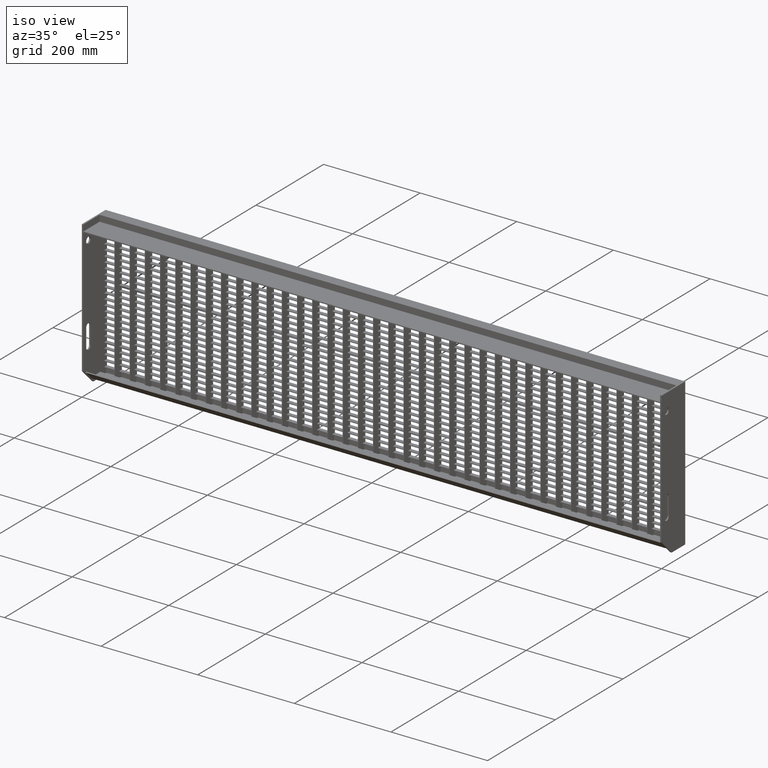
[diagram: clean part render]
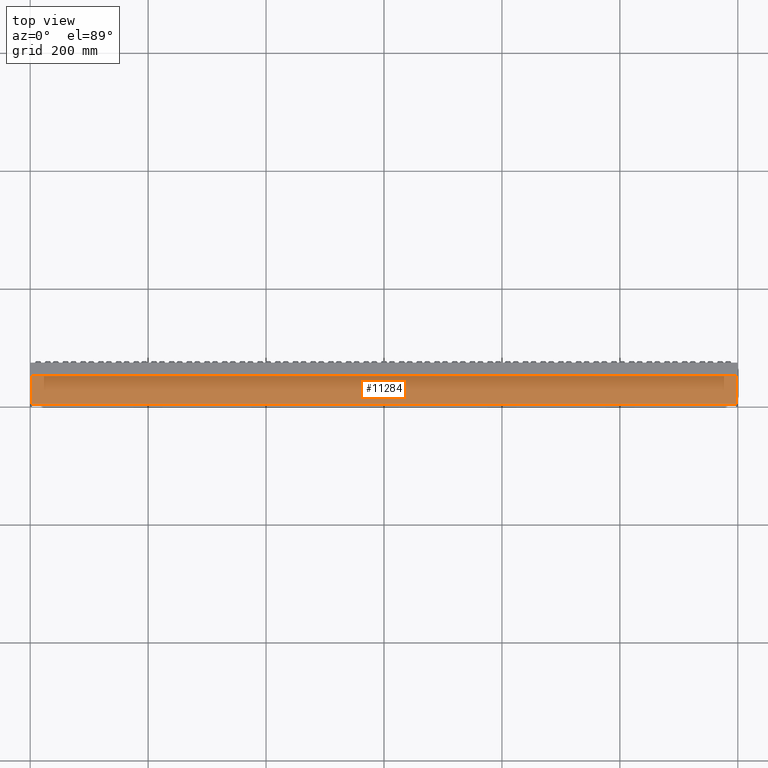
[diagram: tour spotlight — one face highlighted and labeled with its STEP entity id]
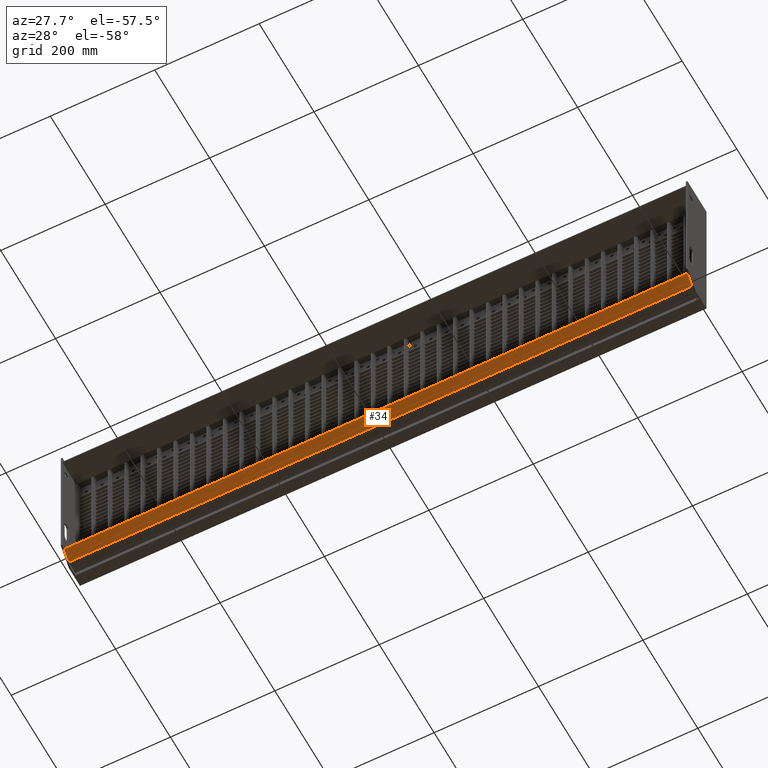
[diagram: tour spotlight — one face highlighted and labeled with its STEP entity id]
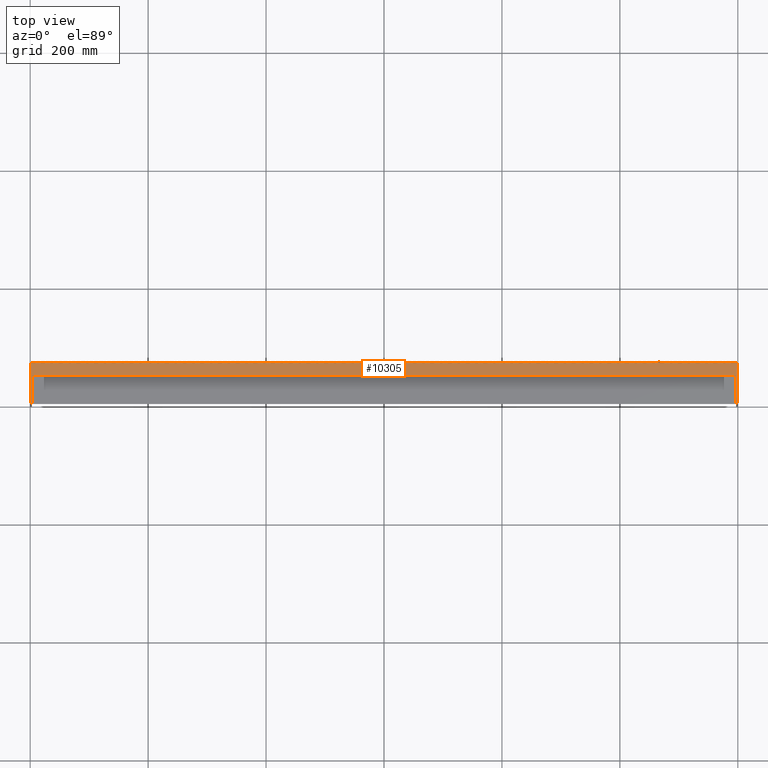
[diagram: tour spotlight — one face highlighted and labeled with its STEP entity id]
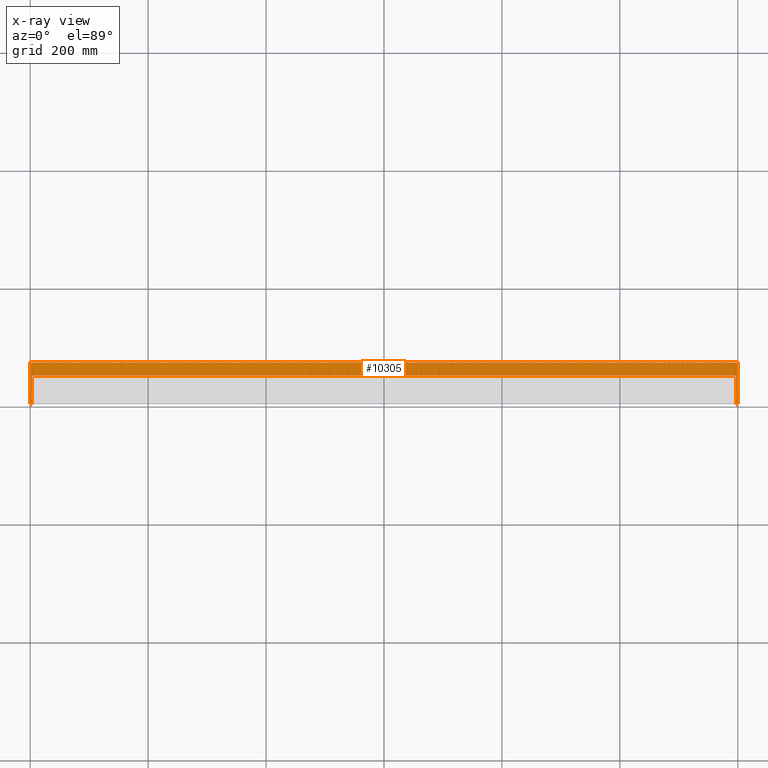
[diagram: x-ray of the same camera — body ghosted, this tour face saturated]
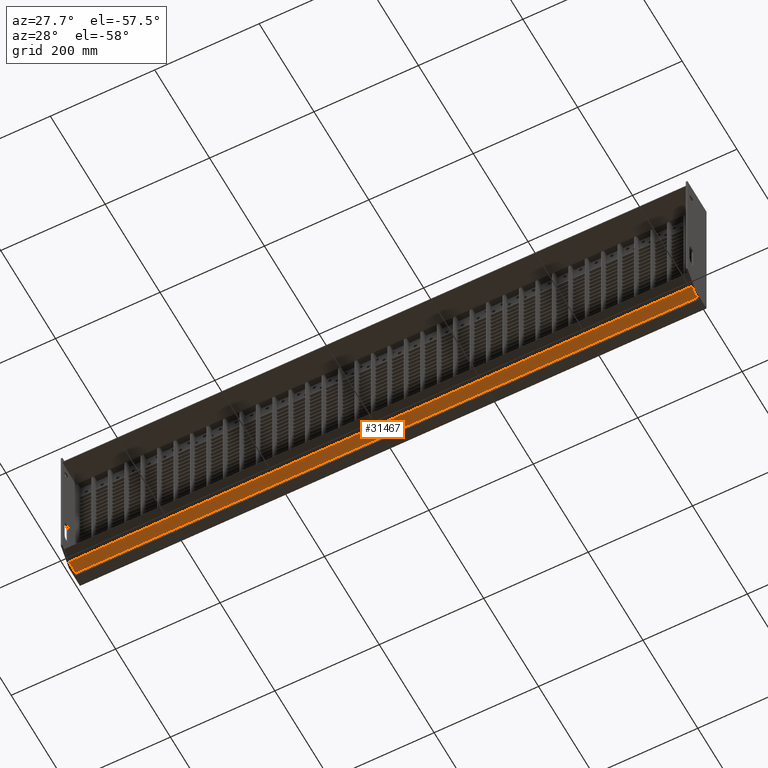
[diagram: tour spotlight — one face highlighted and labeled with its STEP entity id]
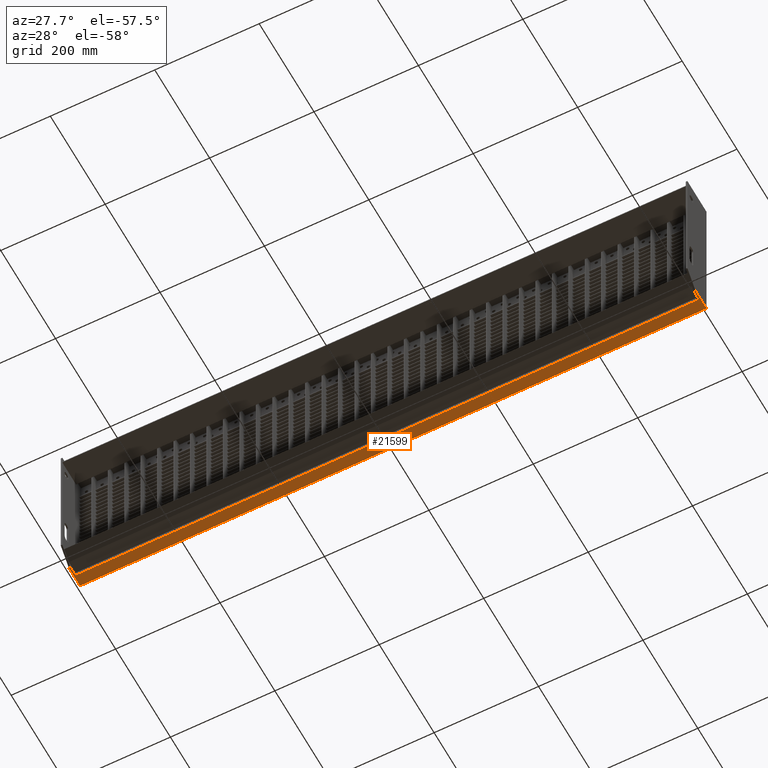
[diagram: tour spotlight — one face highlighted and labeled with its STEP entity id]
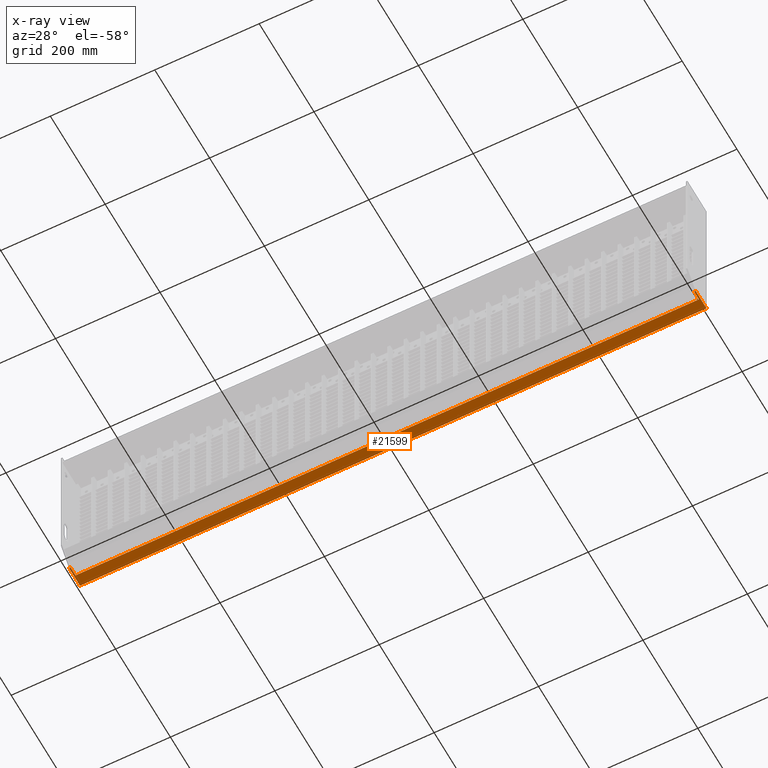
[diagram: x-ray of the same camera — body ghosted, this tour face saturated]
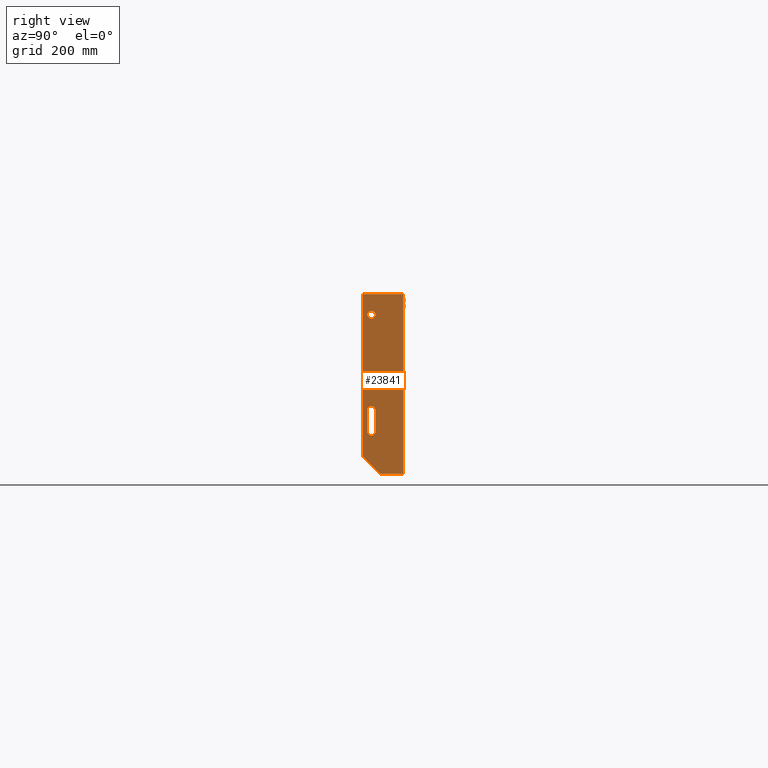
[diagram: tour spotlight — one face highlighted and labeled with its STEP entity id]
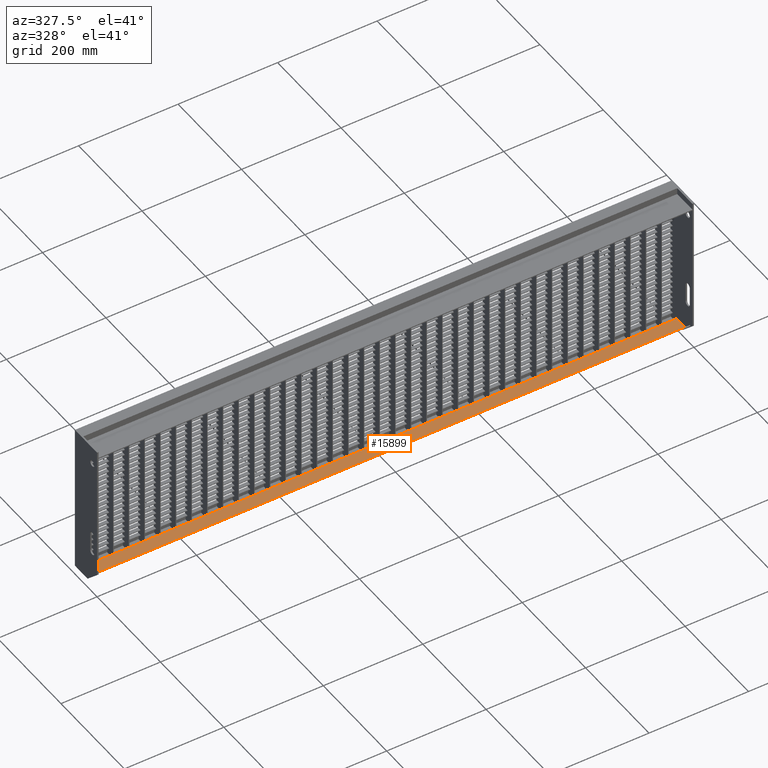
[diagram: tour spotlight — one face highlighted and labeled with its STEP entity id]
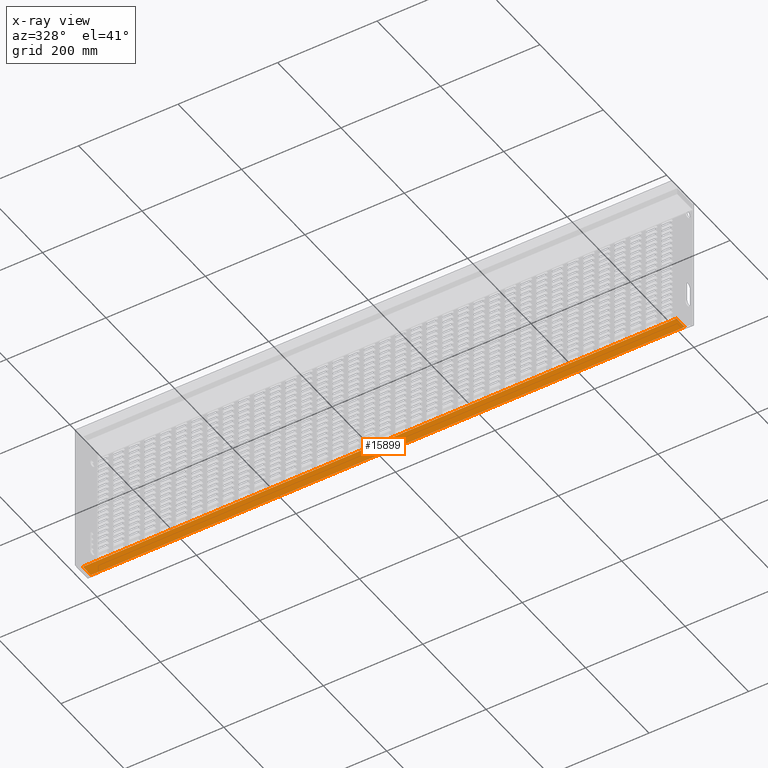
[diagram: x-ray of the same camera — body ghosted, this tour face saturated]
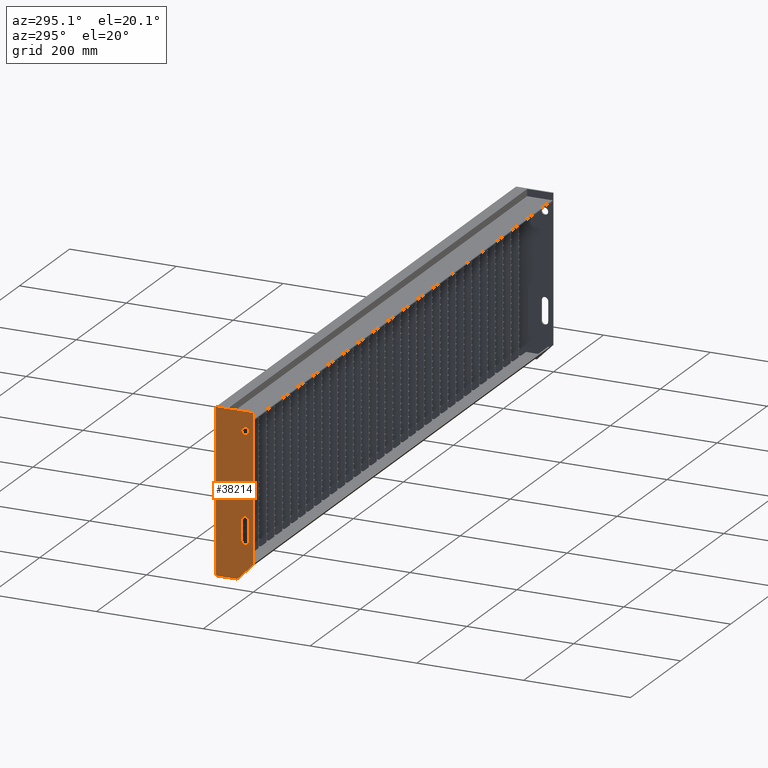
[diagram: tour spotlight — one face highlighted and labeled with its STEP entity id]
A machine part: a face-by-face anatomy tour. The part has 1154 B-rep faces; the first image is the clean iso view, then the 8 largest visible faces are spotlighted one at a time (largest first), each with its STEP entity span.

Face 1 — top view, entity #11284. In plain terms, the highlighted planar face has unit normal (0, -0, -1).
Definition (entity closure, byte-faithful):
#845 = DIRECTION ( 'NONE',  ( 1.000000000000000000, -0.0000000000000000000, -0.0000000000000000000 ) ) ;
#1308 = ORIENTED_EDGE ( 'NONE', *, *, #15312, .F. ) ;
#1542 = ORIENTED_EDGE ( 'NONE', *, *, #16325, .T. ) ;
#3946 = VERTEX_POINT ( 'NONE', #12190 ) ;
#4404 = DIRECTION ( 'NONE',  ( 0.0000000000000000000, -3.614007241618339900E-017, -1.000000000000000000 ) ) ;
#5805 = LINE ( 'NONE', #15954, #32248 ) ;
#6220 = VERTEX_POINT ( 'NONE', #7105 ) ;
#6743 = AXIS2_PLACEMENT_3D ( 'NONE', #13889, #4404, #34979 ) ;
#7016 = EDGE_CURVE ( 'NONE', #6220, #25971, #38928, .T. ) ;
#7105 = CARTESIAN_POINT ( 'NONE',  ( -597.0000000000000000, 48.00000000000011400, -13.00000000000000000 ) ) ;
#9986 = DIRECTION ( 'NONE',  ( -0.0000000000000000000, 1.000000000000000000, -3.614007241618339900E-017 ) ) ;
#10743 = CARTESIAN_POINT ( 'NONE',  ( -673.1577310586392300, 48.00000000000011400, -13.00000000000000000 ) ) ;
#11284 = ADVANCED_FACE ( 'NONE', ( #15049 ), #32311, .F. ) ;
#12190 = CARTESIAN_POINT ( 'NONE',  ( 597.0000000000000000, 48.00000000000011400, -13.00000000000000000 ) ) ;
#12954 = ORIENTED_EDGE ( 'NONE', *, *, #20100, .T. ) ;
#13227 = EDGE_LOOP ( 'NONE', ( #1308, #39371, #12954, #1542 ) ) ;
#13245 = VECTOR ( 'NONE', #9986, 1000.000000000000000 ) ;
#13466 = VECTOR ( 'NONE', #16748, 1000.000000000000000 ) ;
#13889 = CARTESIAN_POINT ( 'NONE',  ( -673.1577310586392300, 48.00000000000011400, -13.00000000000000000 ) ) ;
#15049 = FACE_OUTER_BOUND ( 'NONE', #13227, .T. ) ;
#15312 = EDGE_CURVE ( 'NONE', #6220, #3946, #32637, .T. ) ;
#15954 = CARTESIAN_POINT ( 'NONE',  ( -673.1577310586392300, 5.050613422867832400E-016, -12.99999999999999800 ) ) ;
#16325 = EDGE_CURVE ( 'NONE', #18036, #3946, #29597, .T. ) ;
#16748 = DIRECTION ( 'NONE',  ( 0.0000000000000000000, -1.000000000000000000, 3.614007241618339900E-017 ) ) ;
#18036 = VERTEX_POINT ( 'NONE', #26653 ) ;
#19856 = DIRECTION ( 'NONE',  ( 1.000000000000000000, -0.0000000000000000000, -0.0000000000000000000 ) ) ;
#20100 = EDGE_CURVE ( 'NONE', #25971, #18036, #5805, .T. ) ;
#22331 = CARTESIAN_POINT ( 'NONE',  ( 597.0000000000000000, 48.00000000000011400, -13.00000000000000000 ) ) ;
#22995 = VECTOR ( 'NONE', #19856, 1000.000000000000000 ) ;
#25971 = VERTEX_POINT ( 'NONE', #32610 ) ;
#26653 = CARTESIAN_POINT ( 'NONE',  ( 597.0000000000000000, 5.050613422867832400E-016, -12.99999999999999800 ) ) ;
#29597 = LINE ( 'NONE', #22331, #13245 ) ;
#32248 = VECTOR ( 'NONE', #845, 1000.000000000000000 ) ;
#32311 = PLANE ( 'NONE',  #6743 ) ;
#32610 = CARTESIAN_POINT ( 'NONE',  ( -597.0000000000000000, 2.206004340660704400E-013, -13.00000000000001100 ) ) ;
#32637 = LINE ( 'NONE', #10743, #22995 ) ;
#34864 = CARTESIAN_POINT ( 'NONE',  ( -597.0000000000000000, 48.00000000000011400, -13.00000000000000000 ) ) ;
#34979 = DIRECTION ( 'NONE',  ( 0.0000000000000000000, 1.000000000000000000, -3.614007241618339900E-017 ) ) ;
#38928 = LINE ( 'NONE', #34864, #13466 ) ;
#39371 = ORIENTED_EDGE ( 'NONE', *, *, #7016, .T. ) ;

Face 2 — auxiliary view, entity #34. In plain terms, the highlighted planar face has unit normal (0, 0.7071, 0.7071).
Definition (entity closure, byte-faithful):
#34 = ADVANCED_FACE ( 'NONE', ( #27176 ), #27112, .F. ) ;
#3172 = LINE ( 'NONE', #15387, #5057 ) ;
#4143 = EDGE_LOOP ( 'NONE', ( #17871, #39133, #16553, #11342 ) ) ;
#5057 = VECTOR ( 'NONE', #24959, 999.9999999999998900 ) ;
#7128 = CARTESIAN_POINT ( 'NONE',  ( 597.0000000000000000, 6.650757595082542800, -279.5294372515228400 ) ) ;
#10201 = DIRECTION ( 'NONE',  ( 1.000000000000000000, -0.0000000000000000000, -0.0000000000000000000 ) ) ;
#10616 = VERTEX_POINT ( 'NONE', #31846 ) ;
#11342 = ORIENTED_EDGE ( 'NONE', *, *, #16386, .T. ) ;
#11569 = CARTESIAN_POINT ( 'NONE',  ( 597.0000000000000000, 23.62132034355967400, -296.5000000000000000 ) ) ;
#12516 = VERTEX_POINT ( 'NONE', #15428 ) ;
#13052 = AXIS2_PLACEMENT_3D ( 'NONE', #26845, #36039, #20619 ) ;
#14919 = LINE ( 'NONE', #19327, #23576 ) ;
#15387 = CARTESIAN_POINT ( 'NONE',  ( -597.0000000000000000, 23.62132034355967400, -296.5000000000000000 ) ) ;
#15428 = CARTESIAN_POINT ( 'NONE',  ( -597.0000000000000000, 6.650757595082568600, -279.5294372515228400 ) ) ;
#16386 = EDGE_CURVE ( 'NONE', #37374, #25854, #36278, .T. ) ;
#16553 = ORIENTED_EDGE ( 'NONE', *, *, #19999, .T. ) ;
#17871 = ORIENTED_EDGE ( 'NONE', *, *, #23330, .F. ) ;
#19327 = CARTESIAN_POINT ( 'NONE',  ( -673.1577310586392300, 23.62132034355967400, -296.5000000000000000 ) ) ;
#19999 = EDGE_CURVE ( 'NONE', #10616, #37374, #14919, .T. ) ;
#20619 = DIRECTION ( 'NONE',  ( 0.0000000000000000000, -0.7071067811865473500, 0.7071067811865477900 ) ) ;
#21771 = CARTESIAN_POINT ( 'NONE',  ( -673.1577310586392300, 6.650757595082542800, -279.5294372515228400 ) ) ;
#23330 = EDGE_CURVE ( 'NONE', #12516, #25854, #24980, .T. ) ;
#23576 = VECTOR ( 'NONE', #10201, 1000.000000000000000 ) ;
#24959 = DIRECTION ( 'NONE',  ( 0.0000000000000000000, 0.7071067811865473500, -0.7071067811865477900 ) ) ;
#24980 = LINE ( 'NONE', #21771, #35471 ) ;
#25178 = DIRECTION ( 'NONE',  ( 1.000000000000000000, -0.0000000000000000000, -0.0000000000000000000 ) ) ;
#25854 = VERTEX_POINT ( 'NONE', #7128 ) ;
#26204 = EDGE_CURVE ( 'NONE', #12516, #10616, #3172, .T. ) ;
#26845 = CARTESIAN_POINT ( 'NONE',  ( -673.1577310586392300, 23.62132034355967400, -296.5000000000000000 ) ) ;
#27112 = PLANE ( 'NONE',  #13052 ) ;
#27176 = FACE_OUTER_BOUND ( 'NONE', #4143, .T. ) ;
#29094 = VECTOR ( 'NONE', #31260, 1000.000000000000000 ) ;
#30236 = CARTESIAN_POINT ( 'NONE',  ( 597.0000000000000000, 23.62132034355967400, -296.5000000000000000 ) ) ;
#31260 = DIRECTION ( 'NONE',  ( 0.0000000000000000000, -0.7071067811865474600, 0.7071067811865476800 ) ) ;
#31846 = CARTESIAN_POINT ( 'NONE',  ( -597.0000000000000000, 23.62132034355964500, -296.5000000000000000 ) ) ;
#35471 = VECTOR ( 'NONE', #25178, 1000.000000000000000 ) ;
#36039 = DIRECTION ( 'NONE',  ( 0.0000000000000000000, 0.7071067811865477900, 0.7071067811865473500 ) ) ;
#36278 = LINE ( 'NONE', #11569, #29094 ) ;
#37374 = VERTEX_POINT ( 'NONE', #30236 ) ;
#39133 = ORIENTED_EDGE ( 'NONE', *, *, #26204, .T. ) ;

Face 3 — top view, entity #10305. An x-ray twin of the same camera follows (body ghosted, this face saturated) — the face is partly hidden behind the body. In plain terms, the highlighted planar face has unit normal (0, 0, 1).
Definition (entity closure, byte-faithful):
#91 = VERTEX_POINT ( 'NONE', #36710 ) ;
#745 = VECTOR ( 'NONE', #3153, 1000.000000000000000 ) ;
#1283 = CARTESIAN_POINT ( 'NONE',  ( 597.0000000000000000, 70.00000000000022700, 0.0000000000000000000 ) ) ;
#1405 = LINE ( 'NONE', #29766, #11920 ) ;
#2706 = ORIENTED_EDGE ( 'NONE', *, *, #8894, .T. ) ;
#2999 = LINE ( 'NONE', #8490, #17360 ) ;
#3153 = DIRECTION ( 'NONE',  ( 0.0000000000000000000, -1.000000000000000000, -0.0000000000000000000 ) ) ;
#4380 = VECTOR ( 'NONE', #19653, 1000.000000000000000 ) ;
#4921 = DIRECTION ( 'NONE',  ( 0.0000000000000000000, 0.0000000000000000000, 1.000000000000000000 ) ) ;
#6265 = CARTESIAN_POINT ( 'NONE',  ( -600.0000000000000000, 2.204364238465235700E-013, 0.0000000000000000000 ) ) ;
#6375 = ORIENTED_EDGE ( 'NONE', *, *, #36136, .T. ) ;
#6633 = ORIENTED_EDGE ( 'NONE', *, *, #23986, .T. ) ;
#7084 = ORIENTED_EDGE ( 'NONE', *, *, #32967, .F. ) ;
#7392 = VECTOR ( 'NONE', #35173, 1000.000000000000000 ) ;
#7451 = LINE ( 'NONE', #24611, #745 ) ;
#8286 = VERTEX_POINT ( 'NONE', #27210 ) ;
#8490 = CARTESIAN_POINT ( 'NONE',  ( -597.0000000000000000, 2.204364238465235700E-013, 0.0000000000000000000 ) ) ;
#8894 = EDGE_CURVE ( 'NONE', #8286, #21926, #34926, .T. ) ;
#9367 = DIRECTION ( 'NONE',  ( 0.0000000000000000000, -1.000000000000000000, -0.0000000000000000000 ) ) ;
#10305 = ADVANCED_FACE ( 'NONE', ( #18972 ), #35370, .T. ) ;
#10422 = EDGE_CURVE ( 'NONE', #32834, #19669, #7451, .T. ) ;
#11154 = CARTESIAN_POINT ( 'NONE',  ( 597.0000000000000000, 2.204364238465235700E-013, 0.0000000000000000000 ) ) ;
#11524 = ORIENTED_EDGE ( 'NONE', *, *, #13742, .F. ) ;
#11539 = VECTOR ( 'NONE', #29651, 1000.000000000000000 ) ;
#11920 = VECTOR ( 'NONE', #26857, 1000.000000000000000 ) ;
#13742 = EDGE_CURVE ( 'NONE', #19669, #21626, #2999, .T. ) ;
#14164 = DIRECTION ( 'NONE',  ( 1.000000000000000000, 0.0000000000000000000, -0.0000000000000000000 ) ) ;
#14858 = EDGE_CURVE ( 'NONE', #91, #21626, #24995, .T. ) ;
#15606 = CARTESIAN_POINT ( 'NONE',  ( -597.0000000000000000, 48.00000000000011400, 0.0000000000000000000 ) ) ;
#15829 = VERTEX_POINT ( 'NONE', #22507 ) ;
#16257 = EDGE_LOOP ( 'NONE', ( #33094, #7084, #23638, #11524, #29120, #6375, #2706, #6633 ) ) ;
#16807 = LINE ( 'NONE', #32469, #11539 ) ;
#17128 = CARTESIAN_POINT ( 'NONE',  ( 597.0000000000000000, 2.204364238465235700E-013, 0.0000000000000000000 ) ) ;
#17360 = VECTOR ( 'NONE', #35718, 1000.000000000000000 ) ;
#17801 = LINE ( 'NONE', #32536, #4380 ) ;
#18298 = CARTESIAN_POINT ( 'NONE',  ( -597.0000000000000000, 2.204364238465235700E-013, 0.0000000000000000000 ) ) ;
#18726 = DIRECTION ( 'NONE',  ( -0.0000000000000000000, -1.000000000000000000, -0.0000000000000000000 ) ) ;
#18972 = FACE_OUTER_BOUND ( 'NONE', #16257, .T. ) ;
#19653 = DIRECTION ( 'NONE',  ( 1.000000000000000000, -0.0000000000000000000, -0.0000000000000000000 ) ) ;
#19669 = VERTEX_POINT ( 'NONE', #18298 ) ;
#21626 = VERTEX_POINT ( 'NONE', #37591 ) ;
#21926 = VERTEX_POINT ( 'NONE', #11154 ) ;
#22507 = CARTESIAN_POINT ( 'NONE',  ( 600.0000000000000000, 70.00000000000022700, 0.0000000000000000000 ) ) ;
#23638 = ORIENTED_EDGE ( 'NONE', *, *, #14858, .T. ) ;
#23986 = EDGE_CURVE ( 'NONE', #21926, #35486, #1405, .T. ) ;
#24023 = VECTOR ( 'NONE', #9367, 1000.000000000000000 ) ;
#24611 = CARTESIAN_POINT ( 'NONE',  ( -597.0000000000000000, 2.204364238465235700E-013, 0.0000000000000000000 ) ) ;
#24995 = LINE ( 'NONE', #6265, #24023 ) ;
#26820 = VECTOR ( 'NONE', #18726, 1000.000000000000000 ) ;
#26857 = DIRECTION ( 'NONE',  ( 1.000000000000000000, 0.0000000000000000000, 0.0000000000000000000 ) ) ;
#27210 = CARTESIAN_POINT ( 'NONE',  ( 597.0000000000000000, 48.00000000000011400, 0.0000000000000000000 ) ) ;
#29120 = ORIENTED_EDGE ( 'NONE', *, *, #10422, .F. ) ;
#29228 = EDGE_CURVE ( 'NONE', #15829, #35486, #16807, .T. ) ;
#29651 = DIRECTION ( 'NONE',  ( -0.0000000000000000000, -1.000000000000000000, -0.0000000000000000000 ) ) ;
#29766 = CARTESIAN_POINT ( 'NONE',  ( 597.0000000000000000, 2.204364238465235700E-013, 0.0000000000000000000 ) ) ;
#30803 = CARTESIAN_POINT ( 'NONE',  ( 597.0000000000000000, 2.204364238465235700E-013, 0.0000000000000000000 ) ) ;
#30926 = LINE ( 'NONE', #1283, #7392 ) ;
#32317 = CARTESIAN_POINT ( 'NONE',  ( 600.0000000000000000, 2.204364238465235700E-013, 0.0000000000000000000 ) ) ;
#32469 = CARTESIAN_POINT ( 'NONE',  ( 600.0000000000000000, 2.204364238465235700E-013, 0.0000000000000000000 ) ) ;
#32536 = CARTESIAN_POINT ( 'NONE',  ( -673.1577310586392300, 48.00000000000011400, 0.0000000000000000000 ) ) ;
#32834 = VERTEX_POINT ( 'NONE', #15606 ) ;
#32967 = EDGE_CURVE ( 'NONE', #91, #15829, #30926, .T. ) ;
#33094 = ORIENTED_EDGE ( 'NONE', *, *, #29228, .F. ) ;
#33953 = AXIS2_PLACEMENT_3D ( 'NONE', #17128, #4921, #14164 ) ;
#34926 = LINE ( 'NONE', #30803, #26820 ) ;
#35173 = DIRECTION ( 'NONE',  ( 1.000000000000000000, 0.0000000000000000000, 0.0000000000000000000 ) ) ;
#35370 = PLANE ( 'NONE',  #33953 ) ;
#35486 = VERTEX_POINT ( 'NONE', #32317 ) ;
#35718 = DIRECTION ( 'NONE',  ( -1.000000000000000000, 0.0000000000000000000, 0.0000000000000000000 ) ) ;
#36136 = EDGE_CURVE ( 'NONE', #32834, #8286, #17801, .T. ) ;
#36710 = CARTESIAN_POINT ( 'NONE',  ( -600.0000000000000000, 70.00000000000022700, 0.0000000000000000000 ) ) ;
#37591 = CARTESIAN_POINT ( 'NONE',  ( -600.0000000000000000, 2.204364238465235700E-013, 0.0000000000000000000 ) ) ;

Face 4 — auxiliary view, entity #31467. In plain terms, the highlighted planar face has unit normal (0, 0, 1).
Definition (entity closure, byte-faithful):
#3581 = EDGE_LOOP ( 'NONE', ( #22036, #37074, #25264, #24364 ) ) ;
#5129 = DIRECTION ( 'NONE',  ( 1.000000000000000000, -0.0000000000000000000, -0.0000000000000000000 ) ) ;
#5453 = VECTOR ( 'NONE', #5129, 1000.000000000000000 ) ;
#9922 = CARTESIAN_POINT ( 'NONE',  ( -597.0000000000000000, 48.00000000000022000, -296.5000000000000000 ) ) ;
#10201 = DIRECTION ( 'NONE',  ( 1.000000000000000000, -0.0000000000000000000, -0.0000000000000000000 ) ) ;
#10616 = VERTEX_POINT ( 'NONE', #31846 ) ;
#12350 = DIRECTION ( 'NONE',  ( 1.000000000000000000, 0.0000000000000000000, -0.0000000000000000000 ) ) ;
#12442 = AXIS2_PLACEMENT_3D ( 'NONE', #27688, #27563, #12350 ) ;
#14919 = LINE ( 'NONE', #19327, #23576 ) ;
#16646 = DIRECTION ( 'NONE',  ( 0.0000000000000000000, -1.000000000000000000, 0.0000000000000000000 ) ) ;
#17151 = FACE_OUTER_BOUND ( 'NONE', #3581, .T. ) ;
#17328 = CARTESIAN_POINT ( 'NONE',  ( -673.1577310586392300, 48.00000000000022000, -296.5000000000000000 ) ) ;
#17906 = VERTEX_POINT ( 'NONE', #31999 ) ;
#19327 = CARTESIAN_POINT ( 'NONE',  ( -673.1577310586392300, 23.62132034355967400, -296.5000000000000000 ) ) ;
#19854 = LINE ( 'NONE', #17328, #5453 ) ;
#19999 = EDGE_CURVE ( 'NONE', #10616, #37374, #14919, .T. ) ;
#22036 = ORIENTED_EDGE ( 'NONE', *, *, #19999, .F. ) ;
#23576 = VECTOR ( 'NONE', #10201, 1000.000000000000000 ) ;
#23781 = EDGE_CURVE ( 'NONE', #10616, #17906, #36912, .T. ) ;
#24364 = ORIENTED_EDGE ( 'NONE', *, *, #38986, .T. ) ;
#24685 = VERTEX_POINT ( 'NONE', #25435 ) ;
#25130 = DIRECTION ( 'NONE',  ( 0.0000000000000000000, 1.000000000000000000, 0.0000000000000000000 ) ) ;
#25264 = ORIENTED_EDGE ( 'NONE', *, *, #33062, .T. ) ;
#25435 = CARTESIAN_POINT ( 'NONE',  ( 597.0000000000000000, 48.00000000000022000, -296.5000000000000000 ) ) ;
#27563 = DIRECTION ( 'NONE',  ( 0.0000000000000000000, 0.0000000000000000000, 1.000000000000000000 ) ) ;
#27688 = CARTESIAN_POINT ( 'NONE',  ( -673.1577310586392300, 48.00000000000022000, -296.5000000000000000 ) ) ;
#29907 = VECTOR ( 'NONE', #16646, 1000.000000000000000 ) ;
#30236 = CARTESIAN_POINT ( 'NONE',  ( 597.0000000000000000, 23.62132034355967400, -296.5000000000000000 ) ) ;
#30690 = VECTOR ( 'NONE', #25130, 1000.000000000000000 ) ;
#31467 = ADVANCED_FACE ( 'NONE', ( #17151 ), #39733, .F. ) ;
#31846 = CARTESIAN_POINT ( 'NONE',  ( -597.0000000000000000, 23.62132034355964500, -296.5000000000000000 ) ) ;
#31999 = CARTESIAN_POINT ( 'NONE',  ( -597.0000000000000000, 48.00000000000022000, -296.5000000000000000 ) ) ;
#33062 = EDGE_CURVE ( 'NONE', #17906, #24685, #19854, .T. ) ;
#34896 = CARTESIAN_POINT ( 'NONE',  ( 597.0000000000000000, 48.00000000000022000, -296.5000000000000000 ) ) ;
#36639 = LINE ( 'NONE', #34896, #29907 ) ;
#36912 = LINE ( 'NONE', #9922, #30690 ) ;
#37074 = ORIENTED_EDGE ( 'NONE', *, *, #23781, .T. ) ;
#37374 = VERTEX_POINT ( 'NONE', #30236 ) ;
#38986 = EDGE_CURVE ( 'NONE', #24685, #37374, #36639, .T. ) ;
#39733 = PLANE ( 'NONE',  #12442 ) ;

Face 5 — auxiliary view, entity #21599. An x-ray twin of the same camera follows (body ghosted, this face saturated) — the face is partly hidden behind the body. In plain terms, the highlighted planar face has unit normal (0, 0, -1).
Definition (entity closure, byte-faithful):
#1338 = ORIENTED_EDGE ( 'NONE', *, *, #14542, .T. ) ;
#2203 = ORIENTED_EDGE ( 'NONE', *, *, #34482, .T. ) ;
#3535 = CARTESIAN_POINT ( 'NONE',  ( -597.0000000000000000, 30.00000000000022700, -305.0000000000000000 ) ) ;
#6503 = CARTESIAN_POINT ( 'NONE',  ( -600.0000000000000000, 70.00000000000022700, -305.0000000000000000 ) ) ;
#6735 = ORIENTED_EDGE ( 'NONE', *, *, #13445, .T. ) ;
#6815 = VECTOR ( 'NONE', #25557, 1000.000000000000000 ) ;
#7162 = CARTESIAN_POINT ( 'NONE',  ( -600.0000000000000000, 70.00000000000022700, -305.0000000000000000 ) ) ;
#7294 = LINE ( 'NONE', #6503, #35593 ) ;
#7497 = CARTESIAN_POINT ( 'NONE',  ( -597.0000000000000000, 30.00000000000022700, -305.0000000000000000 ) ) ;
#7560 = EDGE_CURVE ( 'NONE', #10544, #16625, #12967, .T. ) ;
#7889 = VECTOR ( 'NONE', #23168, 1000.000000000000000 ) ;
#8799 = VERTEX_POINT ( 'NONE', #23515 ) ;
#8965 = ORIENTED_EDGE ( 'NONE', *, *, #28282, .F. ) ;
#9126 = VECTOR ( 'NONE', #37912, 1000.000000000000000 ) ;
#9744 = VECTOR ( 'NONE', #10189, 1000.000000000000000 ) ;
#10189 = DIRECTION ( 'NONE',  ( -1.000000000000000000, 0.0000000000000000000, 0.0000000000000000000 ) ) ;
#10544 = VERTEX_POINT ( 'NONE', #3535 ) ;
#10546 = VERTEX_POINT ( 'NONE', #16912 ) ;
#11518 = VECTOR ( 'NONE', #17284, 1000.000000000000000 ) ;
#11606 = VECTOR ( 'NONE', #31338, 1000.000000000000000 ) ;
#11974 = LINE ( 'NONE', #35928, #11518 ) ;
#12967 = LINE ( 'NONE', #23008, #9126 ) ;
#13445 = EDGE_CURVE ( 'NONE', #28463, #21007, #7294, .T. ) ;
#14542 = EDGE_CURVE ( 'NONE', #21007, #28347, #11974, .T. ) ;
#15883 = CARTESIAN_POINT ( 'NONE',  ( -597.0000000000000000, 48.00000000000022000, -305.0000000000000000 ) ) ;
#16047 = LINE ( 'NONE', #20341, #7889 ) ;
#16625 = VERTEX_POINT ( 'NONE', #15883 ) ;
#16912 = CARTESIAN_POINT ( 'NONE',  ( 597.0000000000000000, 30.00000000000022700, -305.0000000000000000 ) ) ;
#17284 = DIRECTION ( 'NONE',  ( 1.000000000000000000, 0.0000000000000000000, 0.0000000000000000000 ) ) ;
#17311 = DIRECTION ( 'NONE',  ( 0.0000000000000000000, 0.0000000000000000000, -1.000000000000000000 ) ) ;
#17388 = EDGE_CURVE ( 'NONE', #8799, #28347, #16047, .T. ) ;
#20341 = CARTESIAN_POINT ( 'NONE',  ( 600.0000000000000000, 70.00000000000022700, -305.0000000000000000 ) ) ;
#20545 = CARTESIAN_POINT ( 'NONE',  ( -600.0000000000000000, 30.00000000000022700, -305.0000000000000000 ) ) ;
#21007 = VERTEX_POINT ( 'NONE', #7162 ) ;
#21100 = LINE ( 'NONE', #28905, #22989 ) ;
#21106 = EDGE_CURVE ( 'NONE', #16625, #32040, #21100, .T. ) ;
#21332 = LINE ( 'NONE', #34757, #6815 ) ;
#21599 = ADVANCED_FACE ( 'NONE', ( #36420 ), #39559, .T. ) ;
#21746 = LINE ( 'NONE', #7497, #9744 ) ;
#22844 = CARTESIAN_POINT ( 'NONE',  ( 600.0000000000000000, 70.00000000000022700, -305.0000000000000000 ) ) ;
#22989 = VECTOR ( 'NONE', #32123, 1000.000000000000000 ) ;
#23008 = CARTESIAN_POINT ( 'NONE',  ( -597.0000000000000000, 70.00000000000022700, -305.0000000000000000 ) ) ;
#23168 = DIRECTION ( 'NONE',  ( -0.0000000000000000000, 1.000000000000000000, -0.0000000000000000000 ) ) ;
#23515 = CARTESIAN_POINT ( 'NONE',  ( 600.0000000000000000, 30.00000000000022700, -305.0000000000000000 ) ) ;
#24896 = ORIENTED_EDGE ( 'NONE', *, *, #7560, .F. ) ;
#25362 = CARTESIAN_POINT ( 'NONE',  ( 597.0000000000000000, 70.00000000000022700, -305.0000000000000000 ) ) ;
#25557 = DIRECTION ( 'NONE',  ( -0.0000000000000000000, 1.000000000000000000, -0.0000000000000000000 ) ) ;
#26525 = LINE ( 'NONE', #31062, #11606 ) ;
#27247 = ORIENTED_EDGE ( 'NONE', *, *, #37711, .T. ) ;
#28282 = EDGE_CURVE ( 'NONE', #10546, #8799, #26525, .T. ) ;
#28347 = VERTEX_POINT ( 'NONE', #22844 ) ;
#28463 = VERTEX_POINT ( 'NONE', #20545 ) ;
#28763 = AXIS2_PLACEMENT_3D ( 'NONE', #25362, #17311, #35187 ) ;
#28905 = CARTESIAN_POINT ( 'NONE',  ( -673.1577310586392300, 48.00000000000022000, -305.0000000000000000 ) ) ;
#29600 = ORIENTED_EDGE ( 'NONE', *, *, #21106, .F. ) ;
#30852 = EDGE_LOOP ( 'NONE', ( #35112, #8965, #27247, #29600, #24896, #2203, #6735, #1338 ) ) ;
#31062 = CARTESIAN_POINT ( 'NONE',  ( 597.0000000000000000, 30.00000000000022700, -305.0000000000000000 ) ) ;
#31338 = DIRECTION ( 'NONE',  ( 1.000000000000000000, 0.0000000000000000000, 0.0000000000000000000 ) ) ;
#32040 = VERTEX_POINT ( 'NONE', #37894 ) ;
#32123 = DIRECTION ( 'NONE',  ( 1.000000000000000000, -0.0000000000000000000, -0.0000000000000000000 ) ) ;
#34482 = EDGE_CURVE ( 'NONE', #10544, #28463, #21746, .T. ) ;
#34757 = CARTESIAN_POINT ( 'NONE',  ( 597.0000000000000000, 70.00000000000022700, -305.0000000000000000 ) ) ;
#35112 = ORIENTED_EDGE ( 'NONE', *, *, #17388, .F. ) ;
#35187 = DIRECTION ( 'NONE',  ( -1.000000000000000000, 0.0000000000000000000, -0.0000000000000000000 ) ) ;
#35593 = VECTOR ( 'NONE', #37101, 1000.000000000000000 ) ;
#35928 = CARTESIAN_POINT ( 'NONE',  ( 597.0000000000000000, 70.00000000000022700, -305.0000000000000000 ) ) ;
#36420 = FACE_OUTER_BOUND ( 'NONE', #30852, .T. ) ;
#37101 = DIRECTION ( 'NONE',  ( 0.0000000000000000000, 1.000000000000000000, 0.0000000000000000000 ) ) ;
#37711 = EDGE_CURVE ( 'NONE', #10546, #32040, #21332, .T. ) ;
#37894 = CARTESIAN_POINT ( 'NONE',  ( 597.0000000000000000, 48.00000000000022000, -305.0000000000000000 ) ) ;
#37912 = DIRECTION ( 'NONE',  ( 0.0000000000000000000, 1.000000000000000000, 0.0000000000000000000 ) ) ;
#39559 = PLANE ( 'NONE',  #28763 ) ;

Face 6 — right view, entity #23841. In plain terms, the highlighted planar face has unit normal (-1, 0, 0).
Definition (entity closure, byte-faithful):
#663 = VECTOR ( 'NONE', #33839, 1000.000000000000000 ) ;
#680 = DIRECTION ( 'NONE',  ( 1.000000000000000000, 0.0000000000000000000, 0.0000000000000000000 ) ) ;
#794 = AXIS2_PLACEMENT_3D ( 'NONE', #10718, #1351, #19575 ) ;
#1146 = CARTESIAN_POINT ( 'NONE',  ( 600.0000000000000000, 15.00000000000019900, -28.50000000000000400 ) ) ;
#1351 = DIRECTION ( 'NONE',  ( -1.000000000000000000, 0.0000000000000000000, 0.0000000000000000000 ) ) ;
#1400 = ORIENTED_EDGE ( 'NONE', *, *, #5681, .F. ) ;
#1485 = ORIENTED_EDGE ( 'NONE', *, *, #17156, .F. ) ;
#1903 = CIRCLE ( 'NONE', #13388, 6.500000000000005300 ) ;
#2588 = EDGE_LOOP ( 'NONE', ( #32584, #1485, #1400, #16834, #5671 ) ) ;
#4416 = AXIS2_PLACEMENT_3D ( 'NONE', #12827, #19021, #28310 ) ;
#4797 = CARTESIAN_POINT ( 'NONE',  ( 600.0000000000000000, 15.00000000000019900, -35.00000000000000000 ) ) ;
#5045 = CARTESIAN_POINT ( 'NONE',  ( 600.0000000000000000, 8.500000000000183000, -196.4999999999999400 ) ) ;
#5671 = ORIENTED_EDGE ( 'NONE', *, *, #20517, .F. ) ;
#5681 = EDGE_CURVE ( 'NONE', #36903, #37876, #11174, .T. ) ;
#6676 = CARTESIAN_POINT ( 'NONE',  ( 600.0000000000000000, 15.00000000000019900, -196.4999999999999400 ) ) ;
#7889 = VECTOR ( 'NONE', #23168, 1000.000000000000000 ) ;
#7914 = VERTEX_POINT ( 'NONE', #28115 ) ;
#8259 = AXIS2_PLACEMENT_3D ( 'NONE', #15925, #13246, #31406 ) ;
#8445 = VERTEX_POINT ( 'NONE', #30777 ) ;
#8549 = DIRECTION ( 'NONE',  ( -0.0000000000000000000, 1.261617073437686200E-017, -1.000000000000000000 ) ) ;
#8567 = VERTEX_POINT ( 'NONE', #1146 ) ;
#8668 = CIRCLE ( 'NONE', #4416, 6.500000000000005300 ) ;
#8798 = EDGE_CURVE ( 'NONE', #28347, #15829, #30632, .T. ) ;
#8799 = VERTEX_POINT ( 'NONE', #23515 ) ;
#9732 = ORIENTED_EDGE ( 'NONE', *, *, #29228, .T. ) ;
#10035 = DIRECTION ( 'NONE',  ( 0.0000000000000000000, 0.0000000000000000000, -1.000000000000000000 ) ) ;
#10107 = VERTEX_POINT ( 'NONE', #19949 ) ;
#10241 = ORIENTED_EDGE ( 'NONE', *, *, #11172, .F. ) ;
#10516 = FACE_OUTER_BOUND ( 'NONE', #27944, .T. ) ;
#10718 = CARTESIAN_POINT ( 'NONE',  ( 600.0000000000000000, 0.0000000000000000000, 0.0000000000000000000 ) ) ;
#10753 = AXIS2_PLACEMENT_3D ( 'NONE', #4797, #23314, #29227 ) ;
#11172 = EDGE_CURVE ( 'NONE', #8567, #24997, #22265, .T. ) ;
#11174 = LINE ( 'NONE', #24750, #663 ) ;
#11539 = VECTOR ( 'NONE', #29651, 1000.000000000000000 ) ;
#11741 = EDGE_CURVE ( 'NONE', #10107, #8799, #22313, .T. ) ;
#12827 = CARTESIAN_POINT ( 'NONE',  ( 600.0000000000000000, 15.00000000000020300, -233.4999999999998900 ) ) ;
#13208 = DIRECTION ( 'NONE',  ( 1.000000000000000000, 0.0000000000000000000, 0.0000000000000000000 ) ) ;
#13246 = DIRECTION ( 'NONE',  ( 1.000000000000000000, 0.0000000000000000000, 0.0000000000000000000 ) ) ;
#13388 = AXIS2_PLACEMENT_3D ( 'NONE', #25747, #13208, #25607 ) ;
#14723 = ORIENTED_EDGE ( 'NONE', *, *, #8798, .T. ) ;
#14892 = ORIENTED_EDGE ( 'NONE', *, *, #11741, .T. ) ;
#15829 = VERTEX_POINT ( 'NONE', #22507 ) ;
#15925 = CARTESIAN_POINT ( 'NONE',  ( 600.0000000000000000, 15.00000000000019900, -35.00000000000000000 ) ) ;
#16047 = LINE ( 'NONE', #20341, #7889 ) ;
#16349 = EDGE_LOOP ( 'NONE', ( #24395, #10241 ) ) ;
#16722 = EDGE_CURVE ( 'NONE', #31717, #7914, #36235, .T. ) ;
#16807 = LINE ( 'NONE', #32469, #11539 ) ;
#16834 = ORIENTED_EDGE ( 'NONE', *, *, #37194, .F. ) ;
#17156 = EDGE_CURVE ( 'NONE', #37876, #31717, #39086, .T. ) ;
#17388 = EDGE_CURVE ( 'NONE', #8799, #28347, #16047, .T. ) ;
#17675 = AXIS2_PLACEMENT_3D ( 'NONE', #6676, #680, #10035 ) ;
#18742 = ORIENTED_EDGE ( 'NONE', *, *, #17388, .T. ) ;
#19021 = DIRECTION ( 'NONE',  ( 1.000000000000000000, 0.0000000000000000000, 0.0000000000000000000 ) ) ;
#19575 = DIRECTION ( 'NONE',  ( 0.0000000000000000000, 0.0000000000000000000, 1.000000000000000000 ) ) ;
#19949 = CARTESIAN_POINT ( 'NONE',  ( 600.0000000000000000, 2.239058707984771800E-013, -275.0000000000001100 ) ) ;
#20341 = CARTESIAN_POINT ( 'NONE',  ( 600.0000000000000000, 70.00000000000022700, -305.0000000000000000 ) ) ;
#20517 = EDGE_CURVE ( 'NONE', #7914, #8445, #8668, .T. ) ;
#22265 = CIRCLE ( 'NONE', #8259, 6.499999999999999100 ) ;
#22294 = EDGE_CURVE ( 'NONE', #24997, #8567, #33959, .T. ) ;
#22313 = LINE ( 'NONE', #37709, #26677 ) ;
#22507 = CARTESIAN_POINT ( 'NONE',  ( 600.0000000000000000, 70.00000000000022700, 0.0000000000000000000 ) ) ;
#22686 = DIRECTION ( 'NONE',  ( -0.0000000000000000000, 0.7071067811865491300, -0.7071067811865459100 ) ) ;
#22844 = CARTESIAN_POINT ( 'NONE',  ( 600.0000000000000000, 70.00000000000022700, -305.0000000000000000 ) ) ;
#22865 = CARTESIAN_POINT ( 'NONE',  ( 600.0000000000000000, 8.500000000000183000, -196.4999999999999400 ) ) ;
#22978 = FACE_BOUND ( 'NONE', #16349, .T. ) ;
#23168 = DIRECTION ( 'NONE',  ( -0.0000000000000000000, 1.000000000000000000, -0.0000000000000000000 ) ) ;
#23314 = DIRECTION ( 'NONE',  ( 1.000000000000000000, 0.0000000000000000000, 0.0000000000000000000 ) ) ;
#23515 = CARTESIAN_POINT ( 'NONE',  ( 600.0000000000000000, 30.00000000000022700, -305.0000000000000000 ) ) ;
#23580 = LINE ( 'NONE', #26983, #38465 ) ;
#23841 = ADVANCED_FACE ( 'NONE', ( #28294, #22978, #10516 ), #25931, .F. ) ;
#24395 = ORIENTED_EDGE ( 'NONE', *, *, #22294, .F. ) ;
#24408 = VECTOR ( 'NONE', #33806, 1000.000000000000000 ) ;
#24750 = CARTESIAN_POINT ( 'NONE',  ( 600.0000000000000000, 21.50000000000020300, -233.4999999999998900 ) ) ;
#24997 = VERTEX_POINT ( 'NONE', #29533 ) ;
#25458 = ORIENTED_EDGE ( 'NONE', *, *, #35697, .T. ) ;
#25607 = DIRECTION ( 'NONE',  ( 0.0000000000000000000, 0.0000000000000000000, -1.000000000000000000 ) ) ;
#25747 = CARTESIAN_POINT ( 'NONE',  ( 600.0000000000000000, 15.00000000000020300, -233.4999999999998900 ) ) ;
#25931 = PLANE ( 'NONE',  #794 ) ;
#26124 = DIRECTION ( 'NONE',  ( 0.0000000000000000000, 3.750753461571482800E-016, -1.000000000000000000 ) ) ;
#26427 = CARTESIAN_POINT ( 'NONE',  ( 600.0000000000000000, 21.50000000000020600, -233.4999999999998900 ) ) ;
#26677 = VECTOR ( 'NONE', #22686, 1000.000000000000100 ) ;
#26907 = CARTESIAN_POINT ( 'NONE',  ( 600.0000000000000000, 70.00000000000022700, 0.0000000000000000000 ) ) ;
#26983 = CARTESIAN_POINT ( 'NONE',  ( 600.0000000000000000, 2.239058707984771800E-013, -275.0000000000001100 ) ) ;
#27944 = EDGE_LOOP ( 'NONE', ( #25458, #14892, #18742, #14723, #9732 ) ) ;
#28115 = CARTESIAN_POINT ( 'NONE',  ( 600.0000000000000000, 8.500000000000197200, -233.4999999999998900 ) ) ;
#28294 = FACE_BOUND ( 'NONE', #2588, .T. ) ;
#28310 = DIRECTION ( 'NONE',  ( 0.0000000000000000000, 0.0000000000000000000, -1.000000000000000000 ) ) ;
#28347 = VERTEX_POINT ( 'NONE', #22844 ) ;
#29227 = DIRECTION ( 'NONE',  ( 0.0000000000000000000, 0.0000000000000000000, -1.000000000000000000 ) ) ;
#29228 = EDGE_CURVE ( 'NONE', #15829, #35486, #16807, .T. ) ;
#29529 = CARTESIAN_POINT ( 'NONE',  ( 600.0000000000000000, 21.50000000000021700, -196.4999999999999400 ) ) ;
#29533 = CARTESIAN_POINT ( 'NONE',  ( 600.0000000000000000, 15.00000000000019900, -41.50000000000000000 ) ) ;
#29651 = DIRECTION ( 'NONE',  ( -0.0000000000000000000, -1.000000000000000000, -0.0000000000000000000 ) ) ;
#30632 = LINE ( 'NONE', #26907, #24408 ) ;
#30777 = CARTESIAN_POINT ( 'NONE',  ( 600.0000000000000000, 15.00000000000020300, -239.9999999999998900 ) ) ;
#31406 = DIRECTION ( 'NONE',  ( 0.0000000000000000000, 0.0000000000000000000, -1.000000000000000000 ) ) ;
#31717 = VERTEX_POINT ( 'NONE', #5045 ) ;
#32317 = CARTESIAN_POINT ( 'NONE',  ( 600.0000000000000000, 2.204364238465235700E-013, 0.0000000000000000000 ) ) ;
#32469 = CARTESIAN_POINT ( 'NONE',  ( 600.0000000000000000, 2.204364238465235700E-013, 0.0000000000000000000 ) ) ;
#32584 = ORIENTED_EDGE ( 'NONE', *, *, #16722, .F. ) ;
#33806 = DIRECTION ( 'NONE',  ( -0.0000000000000000000, -0.0000000000000000000, 1.000000000000000000 ) ) ;
#33839 = DIRECTION ( 'NONE',  ( 0.0000000000000000000, 3.750753461571482800E-016, 1.000000000000000000 ) ) ;
#33959 = CIRCLE ( 'NONE', #10753, 6.499999999999999100 ) ;
#35486 = VERTEX_POINT ( 'NONE', #32317 ) ;
#35697 = EDGE_CURVE ( 'NONE', #35486, #10107, #23580, .T. ) ;
#35761 = VECTOR ( 'NONE', #26124, 1000.000000000000000 ) ;
#36235 = LINE ( 'NONE', #22865, #35761 ) ;
#36903 = VERTEX_POINT ( 'NONE', #26427 ) ;
#37194 = EDGE_CURVE ( 'NONE', #8445, #36903, #1903, .T. ) ;
#37709 = CARTESIAN_POINT ( 'NONE',  ( 600.0000000000000000, 30.00000000000022700, -305.0000000000000000 ) ) ;
#37876 = VERTEX_POINT ( 'NONE', #29529 ) ;
#38465 = VECTOR ( 'NONE', #8549, 1000.000000000000000 ) ;
#39086 = CIRCLE ( 'NONE', #17675, 6.500000000000005300 ) ;

Face 7 — auxiliary view, entity #15899. An x-ray twin of the same camera follows (body ghosted, this face saturated) — the face is partly hidden behind the body. In plain terms, the highlighted planar face has unit normal (0, 0, -1).
Definition (entity closure, byte-faithful):
#58 = CARTESIAN_POINT ( 'NONE',  ( 597.0000000000000000, 24.44974746830581200, -294.5000000000000000 ) ) ;
#1233 = VECTOR ( 'NONE', #11537, 1000.000000000000000 ) ;
#1731 = LINE ( 'NONE', #32188, #25283 ) ;
#1758 = EDGE_CURVE ( 'NONE', #11655, #20654, #31607, .T. ) ;
#1978 = CARTESIAN_POINT ( 'NONE',  ( 125.2500000000000000, 50.00000000000000000, -294.5000000000000000 ) ) ;
#1992 = VERTEX_POINT ( 'NONE', #12141 ) ;
#2127 = EDGE_CURVE ( 'NONE', #18171, #17650, #39234, .T. ) ;
#2358 = CARTESIAN_POINT ( 'NONE',  ( 62.25000000000000000, 50.00000000000000000, -294.5000000000000000 ) ) ;
#2586 = DIRECTION ( 'NONE',  ( 1.000000000000000000, -0.0000000000000000000, -0.0000000000000000000 ) ) ;
#2977 = EDGE_CURVE ( 'NONE', #8294, #32611, #8937, .T. ) ;
#3355 = VERTEX_POINT ( 'NONE', #2358 ) ;
#3716 = LINE ( 'NONE', #14946, #36329 ) ;
#3745 = DIRECTION ( 'NONE',  ( 1.000000000000000000, -0.0000000000000000000, -0.0000000000000000000 ) ) ;
#4013 = CARTESIAN_POINT ( 'NONE',  ( -673.1577310586392300, 50.00000000000022700, -294.5000000000000000 ) ) ;
#4218 = CARTESIAN_POINT ( 'NONE',  ( -673.1577310586392300, 50.00000000000022700, -294.5000000000000000 ) ) ;
#4466 = DIRECTION ( 'NONE',  ( 1.000000000000000000, -0.0000000000000000000, -0.0000000000000000000 ) ) ;
#4597 = EDGE_CURVE ( 'NONE', #27282, #36899, #24216, .T. ) ;
#4685 = CARTESIAN_POINT ( 'NONE',  ( -673.1577310586392300, 50.00000000000022700, -294.5000000000000000 ) ) ;
#4785 = DIRECTION ( 'NONE',  ( 1.000000000000000000, -0.0000000000000000000, -0.0000000000000000000 ) ) ;
#6435 = EDGE_CURVE ( 'NONE', #37588, #21407, #8234, .T. ) ;
#6657 = LINE ( 'NONE', #10499, #32598 ) ;
#6700 = DIRECTION ( 'NONE',  ( 1.000000000000000000, -0.0000000000000000000, -0.0000000000000000000 ) ) ;
#6914 = EDGE_CURVE ( 'NONE', #37667, #8294, #23589, .T. ) ;
#6917 = VECTOR ( 'NONE', #2586, 1000.000000000000000 ) ;
#6918 = DIRECTION ( 'NONE',  ( 0.0000000000000000000, 1.000000000000000000, 0.0000000000000000000 ) ) ;
#7021 = ORIENTED_EDGE ( 'NONE', *, *, #1758, .F. ) ;
#7092 = VECTOR ( 'NONE', #9913, 1000.000000000000000 ) ;
#7339 = VECTOR ( 'NONE', #14290, 1000.000000000000000 ) ;
#7489 = CARTESIAN_POINT ( 'NONE',  ( 30.75000000000000000, 50.00000000000000000, -294.5000000000000000 ) ) ;
#7666 = EDGE_CURVE ( 'NONE', #38248, #11655, #25025, .T. ) ;
#7694 = CARTESIAN_POINT ( 'NONE',  ( -125.2500000000000000, 50.00000000000000000, -294.5000000000000000 ) ) ;
#7850 = ORIENTED_EDGE ( 'NONE', *, *, #23644, .T. ) ;
#7996 = CARTESIAN_POINT ( 'NONE',  ( -63.75000000000000000, 50.00000000000000000, -294.5000000000000000 ) ) ;
#8112 = DIRECTION ( 'NONE',  ( 1.000000000000000000, -0.0000000000000000000, -0.0000000000000000000 ) ) ;
#8234 = LINE ( 'NONE', #20360, #21676 ) ;
#8238 = ORIENTED_EDGE ( 'NONE', *, *, #6435, .F. ) ;
#8279 = CARTESIAN_POINT ( 'NONE',  ( -62.25000000000000000, 50.00000000000000000, -294.5000000000000000 ) ) ;
#8294 = VERTEX_POINT ( 'NONE', #36284 ) ;
#8385 = CARTESIAN_POINT ( 'NONE',  ( -673.1577310586392300, 50.00000000000022700, -294.5000000000000000 ) ) ;
#8583 = LINE ( 'NONE', #18798, #9541 ) ;
#8934 = ORIENTED_EDGE ( 'NONE', *, *, #19067, .F. ) ;
#8937 = LINE ( 'NONE', #18235, #33877 ) ;
#8995 = DIRECTION ( 'NONE',  ( 1.000000000000000000, -0.0000000000000000000, -0.0000000000000000000 ) ) ;
#9165 = LINE ( 'NONE', #4685, #11085 ) ;
#9541 = VECTOR ( 'NONE', #6700, 1000.000000000000000 ) ;
#9832 = LINE ( 'NONE', #26890, #1233 ) ;
#9913 = DIRECTION ( 'NONE',  ( 1.000000000000000000, -0.0000000000000000000, -0.0000000000000000000 ) ) ;
#9968 = ORIENTED_EDGE ( 'NONE', *, *, #39591, .F. ) ;
#10015 = CARTESIAN_POINT ( 'NONE',  ( -126.7500000000000000, 50.00000000000000000, -294.5000000000000000 ) ) ;
#10193 = EDGE_CURVE ( 'NONE', #20654, #34333, #1731, .T. ) ;
#10309 = LINE ( 'NONE', #17757, #38638 ) ;
#10499 = CARTESIAN_POINT ( 'NONE',  ( -673.1577310586392300, 50.00000000000022700, -294.5000000000000000 ) ) ;
#10735 = ORIENTED_EDGE ( 'NONE', *, *, #32827, .F. ) ;
#10930 = VERTEX_POINT ( 'NONE', #39710 ) ;
#10956 = PLANE ( 'NONE',  #34365 ) ;
#11085 = VECTOR ( 'NONE', #17018, 1000.000000000000000 ) ;
#11285 = ORIENTED_EDGE ( 'NONE', *, *, #18371, .F. ) ;
#11489 = ORIENTED_EDGE ( 'NONE', *, *, #16861, .F. ) ;
#11500 = EDGE_CURVE ( 'NONE', #10930, #3355, #10309, .T. ) ;
#11537 = DIRECTION ( 'NONE',  ( 1.000000000000000000, -0.0000000000000000000, -0.0000000000000000000 ) ) ;
#11655 = VERTEX_POINT ( 'NONE', #18679 ) ;
#12141 = CARTESIAN_POINT ( 'NONE',  ( -95.25000000000000000, 50.00000000000000000, -294.5000000000000000 ) ) ;
#13060 = ORIENTED_EDGE ( 'NONE', *, *, #33967, .F. ) ;
#13151 = DIRECTION ( 'NONE',  ( 1.000000000000000000, -0.0000000000000000000, -0.0000000000000000000 ) ) ;
#13393 = CARTESIAN_POINT ( 'NONE',  ( -673.1577310586392300, 50.00000000000022700, -294.5000000000000000 ) ) ;
#13882 = CARTESIAN_POINT ( 'NONE',  ( -673.1577310586392300, 24.44974746830581200, -294.5000000000000000 ) ) ;
#13895 = ORIENTED_EDGE ( 'NONE', *, *, #10193, .F. ) ;
#14261 = CARTESIAN_POINT ( 'NONE',  ( -673.1577310586392300, 50.00000000000022700, -294.5000000000000000 ) ) ;
#14290 = DIRECTION ( 'NONE',  ( 1.000000000000000000, -0.0000000000000000000, -0.0000000000000000000 ) ) ;
#14432 = EDGE_LOOP ( 'NONE', ( #8238, #31075, #7850, #36930, #34594, #13895, #7021, #20499, #10735, #30163, #29560, #35920, #8934, #33584, #15717, #11285, #11489, #9968, #24173, #31566, #23475, #13060 ) ) ;
#14472 = CARTESIAN_POINT ( 'NONE',  ( -673.1577310586392300, 50.00000000000022700, -294.5000000000000000 ) ) ;
#14946 = CARTESIAN_POINT ( 'NONE',  ( -597.0000000000000000, 24.44974746830581200, -294.5000000000000000 ) ) ;
#15471 = LINE ( 'NONE', #38740, #7339 ) ;
#15705 = CARTESIAN_POINT ( 'NONE',  ( -597.0000000000000000, 50.00000000000022700, -294.5000000000000000 ) ) ;
#15717 = ORIENTED_EDGE ( 'NONE', *, *, #6914, .F. ) ;
#15899 = ADVANCED_FACE ( 'NONE', ( #27240 ), #10956, .F. ) ;
#15916 = VERTEX_POINT ( 'NONE', #23570 ) ;
#16126 = DIRECTION ( 'NONE',  ( 1.000000000000000000, -0.0000000000000000000, -0.0000000000000000000 ) ) ;
#16417 = CARTESIAN_POINT ( 'NONE',  ( 597.0000000000000000, 50.00000000000022700, -294.5000000000000000 ) ) ;
#16472 = CARTESIAN_POINT ( 'NONE',  ( -673.1577310586392300, 50.00000000000022700, -294.5000000000000000 ) ) ;
#16861 = EDGE_CURVE ( 'NONE', #21259, #28222, #9832, .T. ) ;
#17018 = DIRECTION ( 'NONE',  ( 1.000000000000000000, -0.0000000000000000000, -0.0000000000000000000 ) ) ;
#17650 = VERTEX_POINT ( 'NONE', #16417 ) ;
#17757 = CARTESIAN_POINT ( 'NONE',  ( -673.1577310586392300, 50.00000000000022700, -294.5000000000000000 ) ) ;
#17904 = VECTOR ( 'NONE', #4785, 1000.000000000000000 ) ;
#18171 = VERTEX_POINT ( 'NONE', #58 ) ;
#18235 = CARTESIAN_POINT ( 'NONE',  ( -673.1577310586392300, 50.00000000000000000, -294.5000000000000000 ) ) ;
#18371 = EDGE_CURVE ( 'NONE', #28222, #37667, #39566, .T. ) ;
#18560 = EDGE_CURVE ( 'NONE', #30299, #1992, #24690, .T. ) ;
#18679 = CARTESIAN_POINT ( 'NONE',  ( 95.25000000000000000, 50.00000000000000000, -294.5000000000000000 ) ) ;
#18793 = CARTESIAN_POINT ( 'NONE',  ( -93.75000000000000000, 50.00000000000000000, -294.5000000000000000 ) ) ;
#18798 = CARTESIAN_POINT ( 'NONE',  ( -673.1577310586392300, 24.44974746830581200, -294.5000000000000000 ) ) ;
#19029 = LINE ( 'NONE', #8385, #27716 ) ;
#19067 = EDGE_CURVE ( 'NONE', #32611, #36791, #15471, .T. ) ;
#19115 = DIRECTION ( 'NONE',  ( 1.000000000000000000, -0.0000000000000000000, -0.0000000000000000000 ) ) ;
#20329 = EDGE_CURVE ( 'NONE', #36791, #10930, #9165, .T. ) ;
#20360 = CARTESIAN_POINT ( 'NONE',  ( -673.1577310586392300, 50.00000000000022700, -294.5000000000000000 ) ) ;
#20390 = LINE ( 'NONE', #4013, #20892 ) ;
#20499 = ORIENTED_EDGE ( 'NONE', *, *, #7666, .F. ) ;
#20654 = VERTEX_POINT ( 'NONE', #1978 ) ;
#20892 = VECTOR ( 'NONE', #3745, 1000.000000000000000 ) ;
#21259 = VERTEX_POINT ( 'NONE', #8279 ) ;
#21407 = VERTEX_POINT ( 'NONE', #10015 ) ;
#21676 = VECTOR ( 'NONE', #26583, 1000.000000000000000 ) ;
#21777 = EDGE_CURVE ( 'NONE', #3355, #15916, #6657, .T. ) ;
#22066 = CARTESIAN_POINT ( 'NONE',  ( 597.0000000000000000, 24.44974746830581200, -294.5000000000000000 ) ) ;
#22908 = VECTOR ( 'NONE', #6918, 1000.000000000000000 ) ;
#22948 = CARTESIAN_POINT ( 'NONE',  ( -30.75000000000000000, 50.00000000000000000, -294.5000000000000000 ) ) ;
#23037 = CARTESIAN_POINT ( 'NONE',  ( -673.1577310586392300, 50.00000000000022700, -294.5000000000000000 ) ) ;
#23163 = DIRECTION ( 'NONE',  ( -1.000000000000000000, 0.0000000000000000000, -0.0000000000000000000 ) ) ;
#23297 = DIRECTION ( 'NONE',  ( 0.0000000000000000000, 0.0000000000000000000, -1.000000000000000000 ) ) ;
#23356 = CARTESIAN_POINT ( 'NONE',  ( -673.1577310586392300, 50.00000000000022700, -294.5000000000000000 ) ) ;
#23475 = ORIENTED_EDGE ( 'NONE', *, *, #18560, .F. ) ;
#23570 = CARTESIAN_POINT ( 'NONE',  ( 63.75000000000000000, 50.00000000000000000, -294.5000000000000000 ) ) ;
#23589 = LINE ( 'NONE', #13393, #26510 ) ;
#23644 = EDGE_CURVE ( 'NONE', #28673, #18171, #8583, .T. ) ;
#24173 = ORIENTED_EDGE ( 'NONE', *, *, #4597, .F. ) ;
#24182 = CARTESIAN_POINT ( 'NONE',  ( -673.1577310586392300, 50.00000000000022700, -294.5000000000000000 ) ) ;
#24216 = LINE ( 'NONE', #24182, #31419 ) ;
#24690 = LINE ( 'NONE', #14472, #6917 ) ;
#24717 = LINE ( 'NONE', #4218, #29918 ) ;
#25025 = LINE ( 'NONE', #14261, #35509 ) ;
#25283 = VECTOR ( 'NONE', #29222, 1000.000000000000000 ) ;
#25479 = EDGE_CURVE ( 'NONE', #34333, #17650, #19029, .T. ) ;
#26510 = VECTOR ( 'NONE', #31551, 1000.000000000000000 ) ;
#26583 = DIRECTION ( 'NONE',  ( 1.000000000000000000, -0.0000000000000000000, -0.0000000000000000000 ) ) ;
#26692 = VECTOR ( 'NONE', #19115, 1000.000000000000000 ) ;
#26890 = CARTESIAN_POINT ( 'NONE',  ( -673.1577310586392300, 50.00000000000022700, -294.5000000000000000 ) ) ;
#27228 = DIRECTION ( 'NONE',  ( 0.0000000000000000000, -1.000000000000000000, 0.0000000000000000000 ) ) ;
#27240 = FACE_OUTER_BOUND ( 'NONE', #14432, .T. ) ;
#27282 = VERTEX_POINT ( 'NONE', #18793 ) ;
#27448 = DIRECTION ( 'NONE',  ( 1.000000000000000000, -0.0000000000000000000, -0.0000000000000000000 ) ) ;
#27716 = VECTOR ( 'NONE', #8112, 1000.000000000000000 ) ;
#28222 = VERTEX_POINT ( 'NONE', #33472 ) ;
#28673 = VERTEX_POINT ( 'NONE', #36767 ) ;
#29222 = DIRECTION ( 'NONE',  ( 1.000000000000000000, -0.0000000000000000000, -0.0000000000000000000 ) ) ;
#29560 = ORIENTED_EDGE ( 'NONE', *, *, #11500, .F. ) ;
#29918 = VECTOR ( 'NONE', #16126, 1000.000000000000000 ) ;
#30163 = ORIENTED_EDGE ( 'NONE', *, *, #21777, .F. ) ;
#30210 = CARTESIAN_POINT ( 'NONE',  ( 126.7500000000000000, 50.00000000000000000, -294.5000000000000000 ) ) ;
#30299 = VERTEX_POINT ( 'NONE', #7694 ) ;
#31068 = CARTESIAN_POINT ( 'NONE',  ( -673.1577310586392300, 50.00000000000022700, -294.5000000000000000 ) ) ;
#31075 = ORIENTED_EDGE ( 'NONE', *, *, #31827, .T. ) ;
#31419 = VECTOR ( 'NONE', #8995, 1000.000000000000000 ) ;
#31551 = DIRECTION ( 'NONE',  ( 1.000000000000000000, -0.0000000000000000000, -0.0000000000000000000 ) ) ;
#31566 = ORIENTED_EDGE ( 'NONE', *, *, #38122, .F. ) ;
#31607 = LINE ( 'NONE', #16472, #7092 ) ;
#31827 = EDGE_CURVE ( 'NONE', #37588, #28673, #3716, .T. ) ;
#32188 = CARTESIAN_POINT ( 'NONE',  ( -673.1577310586392300, 50.00000000000022700, -294.5000000000000000 ) ) ;
#32598 = VECTOR ( 'NONE', #4466, 1000.000000000000000 ) ;
#32611 = VERTEX_POINT ( 'NONE', #38852 ) ;
#32827 = EDGE_CURVE ( 'NONE', #15916, #38248, #38148, .T. ) ;
#33400 = DIRECTION ( 'NONE',  ( 1.000000000000000000, 0.0000000000000000000, 0.0000000000000000000 ) ) ;
#33472 = CARTESIAN_POINT ( 'NONE',  ( -32.25000000000000000, 50.00000000000000000, -294.5000000000000000 ) ) ;
#33584 = ORIENTED_EDGE ( 'NONE', *, *, #2977, .F. ) ;
#33775 = VECTOR ( 'NONE', #13151, 1000.000000000000000 ) ;
#33877 = VECTOR ( 'NONE', #33400, 1000.000000000000000 ) ;
#33967 = EDGE_CURVE ( 'NONE', #21407, #30299, #24717, .T. ) ;
#34333 = VERTEX_POINT ( 'NONE', #30210 ) ;
#34365 = AXIS2_PLACEMENT_3D ( 'NONE', #13882, #23297, #23163 ) ;
#34594 = ORIENTED_EDGE ( 'NONE', *, *, #25479, .F. ) ;
#34672 = LINE ( 'NONE', #23037, #17904 ) ;
#35308 = CARTESIAN_POINT ( 'NONE',  ( 93.75000000000000000, 50.00000000000000000, -294.5000000000000000 ) ) ;
#35509 = VECTOR ( 'NONE', #38432, 1000.000000000000000 ) ;
#35920 = ORIENTED_EDGE ( 'NONE', *, *, #20329, .F. ) ;
#36284 = CARTESIAN_POINT ( 'NONE',  ( -0.7500000000000000000, 50.00000000000000000, -294.5000000000000000 ) ) ;
#36329 = VECTOR ( 'NONE', #27228, 1000.000000000000000 ) ;
#36767 = CARTESIAN_POINT ( 'NONE',  ( -597.0000000000000000, 24.44974746830581200, -294.5000000000000000 ) ) ;
#36791 = VERTEX_POINT ( 'NONE', #7489 ) ;
#36899 = VERTEX_POINT ( 'NONE', #7996 ) ;
#36930 = ORIENTED_EDGE ( 'NONE', *, *, #2127, .T. ) ;
#37588 = VERTEX_POINT ( 'NONE', #15705 ) ;
#37667 = VERTEX_POINT ( 'NONE', #22948 ) ;
#38122 = EDGE_CURVE ( 'NONE', #1992, #27282, #20390, .T. ) ;
#38148 = LINE ( 'NONE', #31068, #26692 ) ;
#38248 = VERTEX_POINT ( 'NONE', #35308 ) ;
#38432 = DIRECTION ( 'NONE',  ( 1.000000000000000000, -0.0000000000000000000, -0.0000000000000000000 ) ) ;
#38638 = VECTOR ( 'NONE', #27448, 1000.000000000000000 ) ;
#38740 = CARTESIAN_POINT ( 'NONE',  ( -673.1577310586392300, 50.00000000000022700, -294.5000000000000000 ) ) ;
#38852 = CARTESIAN_POINT ( 'NONE',  ( 0.7500000000000000000, 50.00000000000000000, -294.5000000000000000 ) ) ;
#39234 = LINE ( 'NONE', #22066, #22908 ) ;
#39566 = LINE ( 'NONE', #23356, #33775 ) ;
#39591 = EDGE_CURVE ( 'NONE', #36899, #21259, #34672, .T. ) ;
#39710 = CARTESIAN_POINT ( 'NONE',  ( 32.25000000000000000, 50.00000000000000000, -294.5000000000000000 ) ) ;

Face 8 — auxiliary view, entity #38214. In plain terms, the highlighted planar face has unit normal (1, 0, -0).
Definition (entity closure, byte-faithful):
#91 = VERTEX_POINT ( 'NONE', #36710 ) ;
#544 = PLANE ( 'NONE',  #20862 ) ;
#601 = CARTESIAN_POINT ( 'NONE',  ( -600.0000000000000000, 15.00000000000019900, -28.50000000000000400 ) ) ;
#806 = CARTESIAN_POINT ( 'NONE',  ( -600.0000000000000000, 0.0000000000000000000, 0.0000000000000000000 ) ) ;
#946 = VERTEX_POINT ( 'NONE', #11377 ) ;
#1100 = CIRCLE ( 'NONE', #22387, 6.500000000000005300 ) ;
#1483 = EDGE_LOOP ( 'NONE', ( #32688, #36308 ) ) ;
#2544 = VERTEX_POINT ( 'NONE', #31036 ) ;
#3944 = EDGE_CURVE ( 'NONE', #21626, #4216, #36695, .T. ) ;
#4146 = AXIS2_PLACEMENT_3D ( 'NONE', #4540, #35363, #16996 ) ;
#4216 = VERTEX_POINT ( 'NONE', #30307 ) ;
#4302 = EDGE_CURVE ( 'NONE', #946, #10543, #25706, .T. ) ;
#4517 = VECTOR ( 'NONE', #36887, 1000.000000000000000 ) ;
#4540 = CARTESIAN_POINT ( 'NONE',  ( -600.0000000000000000, 15.00000000000019900, -35.00000000000000000 ) ) ;
#5690 = VERTEX_POINT ( 'NONE', #21235 ) ;
#5978 = FACE_BOUND ( 'NONE', #24071, .T. ) ;
#6057 = EDGE_CURVE ( 'NONE', #2544, #22624, #27063, .T. ) ;
#6125 = CARTESIAN_POINT ( 'NONE',  ( -600.0000000000000000, 30.00000000000022700, -305.0000000000000000 ) ) ;
#6265 = CARTESIAN_POINT ( 'NONE',  ( -600.0000000000000000, 2.204364238465235700E-013, 0.0000000000000000000 ) ) ;
#6503 = CARTESIAN_POINT ( 'NONE',  ( -600.0000000000000000, 70.00000000000022700, -305.0000000000000000 ) ) ;
#6524 = DIRECTION ( 'NONE',  ( 0.0000000000000000000, 0.7071067811865491300, -0.7071067811865459100 ) ) ;
#6687 = VECTOR ( 'NONE', #12785, 1000.000000000000000 ) ;
#6844 = CARTESIAN_POINT ( 'NONE',  ( -600.0000000000000000, 8.500000000000197200, -233.4999999999998900 ) ) ;
#7126 = DIRECTION ( 'NONE',  ( 1.000000000000000000, -0.0000000000000000000, -0.0000000000000000000 ) ) ;
#7162 = CARTESIAN_POINT ( 'NONE',  ( -600.0000000000000000, 70.00000000000022700, -305.0000000000000000 ) ) ;
#7294 = LINE ( 'NONE', #6503, #35593 ) ;
#7664 = LINE ( 'NONE', #16130, #6687 ) ;
#9367 = DIRECTION ( 'NONE',  ( 0.0000000000000000000, -1.000000000000000000, -0.0000000000000000000 ) ) ;
#9886 = ORIENTED_EDGE ( 'NONE', *, *, #32095, .T. ) ;
#9897 = ORIENTED_EDGE ( 'NONE', *, *, #14858, .F. ) ;
#10543 = VERTEX_POINT ( 'NONE', #601 ) ;
#11377 = CARTESIAN_POINT ( 'NONE',  ( -600.0000000000000000, 15.00000000000019900, -41.50000000000000000 ) ) ;
#12785 = DIRECTION ( 'NONE',  ( 0.0000000000000000000, 3.750753461571482800E-016, -1.000000000000000000 ) ) ;
#13417 = EDGE_LOOP ( 'NONE', ( #30754, #9897, #37444, #20122, #28434 ) ) ;
#13445 = EDGE_CURVE ( 'NONE', #28463, #21007, #7294, .T. ) ;
#14364 = VECTOR ( 'NONE', #6524, 1000.000000000000100 ) ;
#14367 = DIRECTION ( 'NONE',  ( 0.0000000000000000000, 0.0000000000000000000, 1.000000000000000000 ) ) ;
#14858 = EDGE_CURVE ( 'NONE', #91, #21626, #24995, .T. ) ;
#15696 = CARTESIAN_POINT ( 'NONE',  ( -600.0000000000000000, 15.00000000000019900, -196.4999999999999400 ) ) ;
#16130 = CARTESIAN_POINT ( 'NONE',  ( -600.0000000000000000, 8.500000000000183000, -196.4999999999999400 ) ) ;
#16765 = AXIS2_PLACEMENT_3D ( 'NONE', #37869, #25167, #19487 ) ;
#16996 = DIRECTION ( 'NONE',  ( 0.0000000000000000000, 0.0000000000000000000, -1.000000000000000000 ) ) ;
#17171 = CARTESIAN_POINT ( 'NONE',  ( -600.0000000000000000, 15.00000000000020300, -233.4999999999998900 ) ) ;
#17202 = CARTESIAN_POINT ( 'NONE',  ( -600.0000000000000000, 21.50000000000020300, -233.4999999999998900 ) ) ;
#17433 = DIRECTION ( 'NONE',  ( 1.000000000000000000, -0.0000000000000000000, -0.0000000000000000000 ) ) ;
#18263 = ORIENTED_EDGE ( 'NONE', *, *, #27940, .T. ) ;
#18454 = CARTESIAN_POINT ( 'NONE',  ( -600.0000000000000000, 8.500000000000183000, -196.4999999999999400 ) ) ;
#19242 = EDGE_CURVE ( 'NONE', #5690, #39762, #38035, .T. ) ;
#19487 = DIRECTION ( 'NONE',  ( 0.0000000000000000000, 0.0000000000000000000, -1.000000000000000000 ) ) ;
#20122 = ORIENTED_EDGE ( 'NONE', *, *, #13445, .F. ) ;
#20428 = DIRECTION ( 'NONE',  ( 0.0000000000000000000, 0.0000000000000000000, 1.000000000000000000 ) ) ;
#20545 = CARTESIAN_POINT ( 'NONE',  ( -600.0000000000000000, 30.00000000000022700, -305.0000000000000000 ) ) ;
#20853 = FACE_OUTER_BOUND ( 'NONE', #13417, .T. ) ;
#20862 = AXIS2_PLACEMENT_3D ( 'NONE', #806, #21964, #14367 ) ;
#21007 = VERTEX_POINT ( 'NONE', #7162 ) ;
#21235 = CARTESIAN_POINT ( 'NONE',  ( -600.0000000000000000, 21.50000000000021700, -196.4999999999999400 ) ) ;
#21626 = VERTEX_POINT ( 'NONE', #37591 ) ;
#21964 = DIRECTION ( 'NONE',  ( 1.000000000000000000, 0.0000000000000000000, -0.0000000000000000000 ) ) ;
#22387 = AXIS2_PLACEMENT_3D ( 'NONE', #32556, #32425, #35207 ) ;
#22624 = VERTEX_POINT ( 'NONE', #33627 ) ;
#23306 = EDGE_CURVE ( 'NONE', #39762, #33450, #7664, .T. ) ;
#23633 = DIRECTION ( 'NONE',  ( 0.0000000000000000000, 0.0000000000000000000, -1.000000000000000000 ) ) ;
#23942 = CARTESIAN_POINT ( 'NONE',  ( -600.0000000000000000, 70.00000000000022700, 0.0000000000000000000 ) ) ;
#24023 = VECTOR ( 'NONE', #9367, 1000.000000000000000 ) ;
#24071 = EDGE_LOOP ( 'NONE', ( #27798, #18263, #38074, #9886, #30220 ) ) ;
#24995 = LINE ( 'NONE', #6265, #24023 ) ;
#25167 = DIRECTION ( 'NONE',  ( 1.000000000000000000, -0.0000000000000000000, -0.0000000000000000000 ) ) ;
#25706 = CIRCLE ( 'NONE', #16765, 6.499999999999999100 ) ;
#26521 = DIRECTION ( 'NONE',  ( 0.0000000000000000000, 3.750753461571482800E-016, 1.000000000000000000 ) ) ;
#26637 = AXIS2_PLACEMENT_3D ( 'NONE', #17171, #17433, #23633 ) ;
#26752 = DIRECTION ( 'NONE',  ( 0.0000000000000000000, 0.0000000000000000000, -1.000000000000000000 ) ) ;
#27063 = CIRCLE ( 'NONE', #26637, 6.500000000000005300 ) ;
#27410 = VECTOR ( 'NONE', #20428, 1000.000000000000000 ) ;
#27798 = ORIENTED_EDGE ( 'NONE', *, *, #23306, .T. ) ;
#27940 = EDGE_CURVE ( 'NONE', #33450, #2544, #1100, .T. ) ;
#28131 = FACE_BOUND ( 'NONE', #1483, .T. ) ;
#28434 = ORIENTED_EDGE ( 'NONE', *, *, #29508, .F. ) ;
#28463 = VERTEX_POINT ( 'NONE', #20545 ) ;
#28811 = LINE ( 'NONE', #6125, #14364 ) ;
#29508 = EDGE_CURVE ( 'NONE', #4216, #28463, #28811, .T. ) ;
#29763 = LINE ( 'NONE', #23942, #27410 ) ;
#30220 = ORIENTED_EDGE ( 'NONE', *, *, #19242, .T. ) ;
#30261 = CIRCLE ( 'NONE', #4146, 6.499999999999999100 ) ;
#30307 = CARTESIAN_POINT ( 'NONE',  ( -600.0000000000000000, 2.239058707984771800E-013, -275.0000000000001100 ) ) ;
#30324 = EDGE_CURVE ( 'NONE', #21007, #91, #29763, .T. ) ;
#30599 = CARTESIAN_POINT ( 'NONE',  ( -600.0000000000000000, 2.239058707984771800E-013, -275.0000000000001100 ) ) ;
#30754 = ORIENTED_EDGE ( 'NONE', *, *, #3944, .F. ) ;
#31036 = CARTESIAN_POINT ( 'NONE',  ( -600.0000000000000000, 15.00000000000020300, -239.9999999999998900 ) ) ;
#31042 = LINE ( 'NONE', #17202, #37257 ) ;
#32095 = EDGE_CURVE ( 'NONE', #22624, #5690, #31042, .T. ) ;
#32425 = DIRECTION ( 'NONE',  ( 1.000000000000000000, -0.0000000000000000000, -0.0000000000000000000 ) ) ;
#32556 = CARTESIAN_POINT ( 'NONE',  ( -600.0000000000000000, 15.00000000000020300, -233.4999999999998900 ) ) ;
#32688 = ORIENTED_EDGE ( 'NONE', *, *, #4302, .T. ) ;
#33450 = VERTEX_POINT ( 'NONE', #6844 ) ;
#33627 = CARTESIAN_POINT ( 'NONE',  ( -600.0000000000000000, 21.50000000000020600, -233.4999999999998900 ) ) ;
#35207 = DIRECTION ( 'NONE',  ( 0.0000000000000000000, 0.0000000000000000000, -1.000000000000000000 ) ) ;
#35363 = DIRECTION ( 'NONE',  ( 1.000000000000000000, -0.0000000000000000000, -0.0000000000000000000 ) ) ;
#35593 = VECTOR ( 'NONE', #37101, 1000.000000000000000 ) ;
#36308 = ORIENTED_EDGE ( 'NONE', *, *, #36705, .T. ) ;
#36695 = LINE ( 'NONE', #30599, #4517 ) ;
#36705 = EDGE_CURVE ( 'NONE', #10543, #946, #30261, .T. ) ;
#36710 = CARTESIAN_POINT ( 'NONE',  ( -600.0000000000000000, 70.00000000000022700, 0.0000000000000000000 ) ) ;
#36786 = AXIS2_PLACEMENT_3D ( 'NONE', #15696, #7126, #26752 ) ;
#36887 = DIRECTION ( 'NONE',  ( 0.0000000000000000000, 1.261617073437686200E-017, -1.000000000000000000 ) ) ;
#37101 = DIRECTION ( 'NONE',  ( 0.0000000000000000000, 1.000000000000000000, 0.0000000000000000000 ) ) ;
#37257 = VECTOR ( 'NONE', #26521, 1000.000000000000000 ) ;
#37444 = ORIENTED_EDGE ( 'NONE', *, *, #30324, .F. ) ;
#37591 = CARTESIAN_POINT ( 'NONE',  ( -600.0000000000000000, 2.204364238465235700E-013, 0.0000000000000000000 ) ) ;
#37869 = CARTESIAN_POINT ( 'NONE',  ( -600.0000000000000000, 15.00000000000019900, -35.00000000000000000 ) ) ;
#38035 = CIRCLE ( 'NONE', #36786, 6.500000000000005300 ) ;
#38074 = ORIENTED_EDGE ( 'NONE', *, *, #6057, .T. ) ;
#38214 = ADVANCED_FACE ( 'NONE', ( #5978, #28131, #20853 ), #544, .F. ) ;
#39762 = VERTEX_POINT ( 'NONE', #18454 ) ;